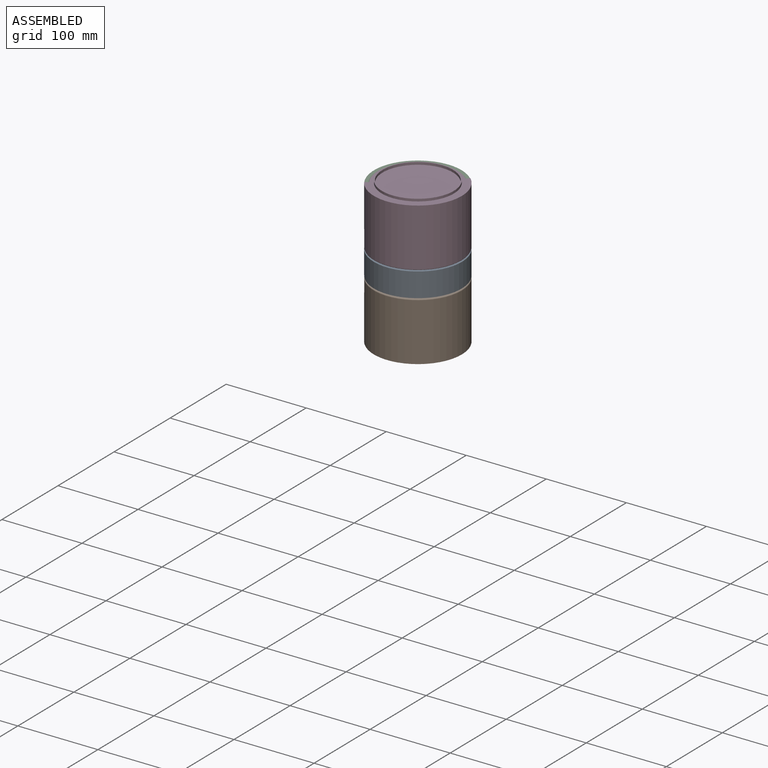
[diagram: assembled view]
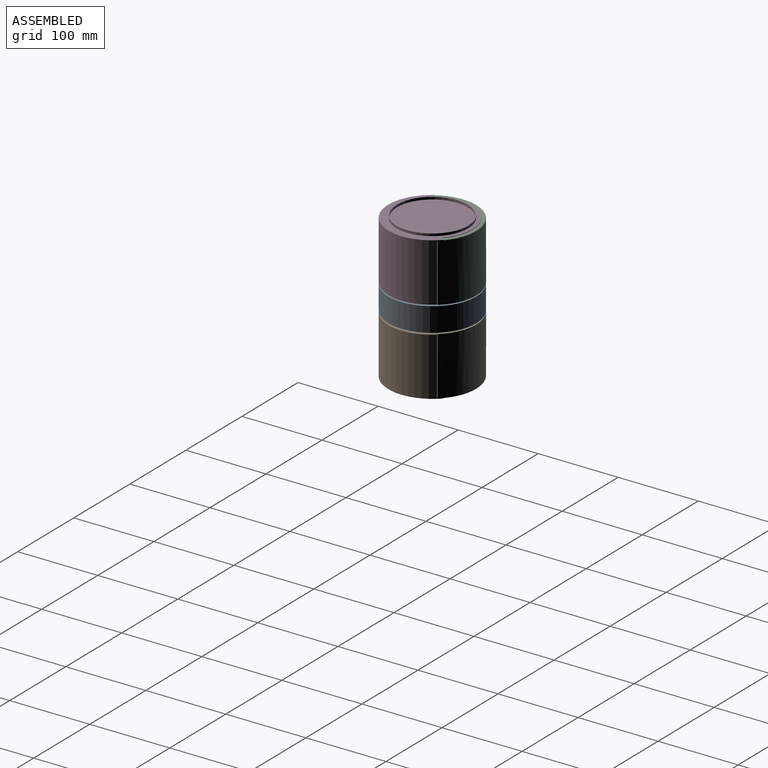
[diagram: assembled view, second angle]
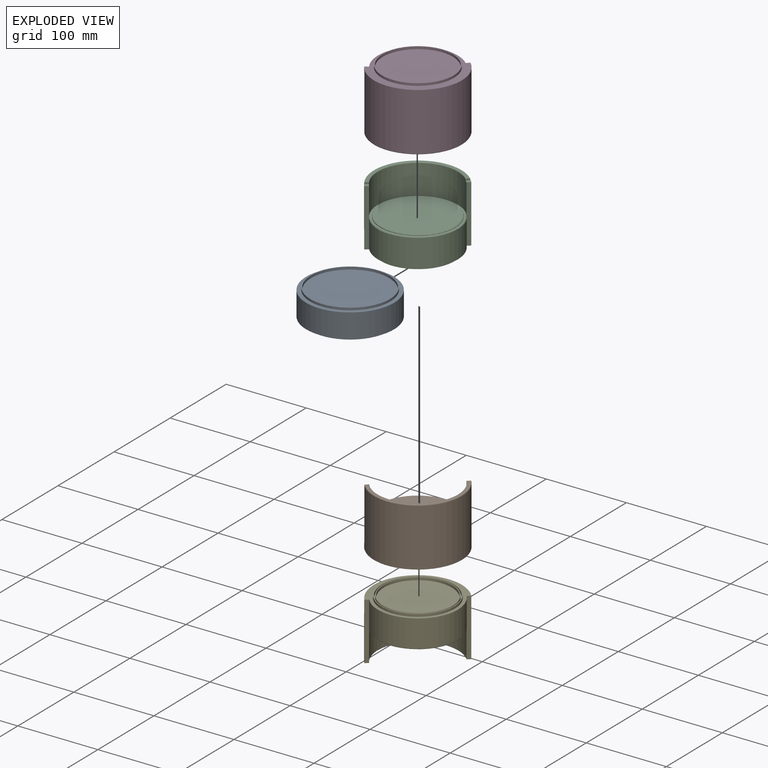
[diagram: exploded view]
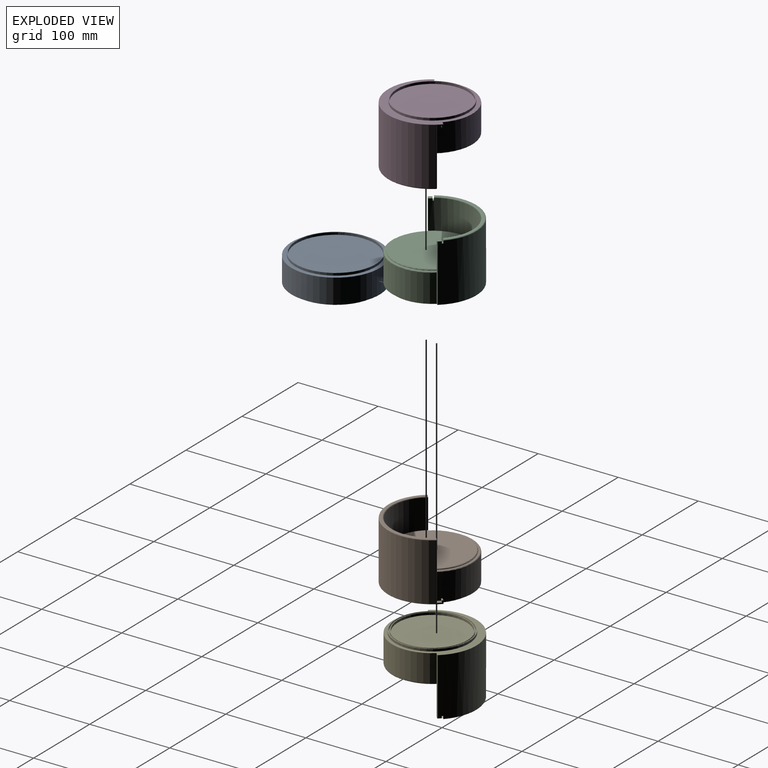
[diagram: exploded view, second angle]
ASSEMBLY  parts=5 mates=4
PART A: 11 faces, bbox 110x110x36 mm
  f0: cylinder r=55mm len=110mm, axis (0,0,-1), area 10367mm2, adj f1,f2
  f1: plane 110x110mm, normal (0,0,1), area 1649.3mm2, adj f0,f8
  f2: plane 110x110mm, normal (0,0,-1), area 1649.3mm2, adj f0,f4
  f3: cylinder r=49mm len=98mm, axis (0,0,1), area 923.6mm2, adj f5,f6
  f4: cylinder r=50mm len=100mm, axis (0,0,1), area 942.5mm2, adj f2,f5
  f5: plane 100x100mm, normal (0,0,-1), area 311mm2, adj f3,f4
  f6: plane 98x98mm, normal (0,0,-1), area 7542.6mm2, adj f3
  f7: cylinder r=49mm len=98mm, axis (0,0,-1), area 923.6mm2, adj f9,f10
  f8: cylinder r=50mm len=100mm, axis (0,0,-1), area 942.5mm2, adj f1,f9
  f9: plane 100x100mm, normal (0,0,1), area 311mm2, adj f7,f8
  f10: plane 98x98mm, normal (0,0,1), area 7542.6mm2, adj f7
PART B: 36 faces, bbox 119x113.7x76 mm
  f0: plane 100x99mm, normal (0,0,-1), area 758.7mm2, adj f5,f7,f10,f12,f23
  f1: cylinder r=44mm len=88mm, axis (0,0,-1), area 829.4mm2, adj f3,f9
  f2: cylinder r=45mm len=90mm, axis (0,0,-1), area 848.2mm2, adj f3,f4
  f3: plane 90x90mm, normal (0,0,1), area 279.6mm2, adj f1,f2
  f4: plane 110x105mm, normal (0,0,1), area 2380.4mm2, adj f2,f6,f8,f17,f18,f24,f25,f27
  f5: plane 70.5x4.99mm, normal (0,1,0), area 281.6mm2, adj f0,f8,f10,f18,f19,f23,f26
  f6: cylinder r=55mm len=109.98mm, axis (0,0,1), area 12293.9mm2, adj f4,f17,f18,f22
  f7: plane 70.5x4.99mm, normal (0,1,0), area 281.6mm2, adj f0,f8,f10,f16,f17,f23,f29
  f8: cylinder r=50mm len=100mm, axis (0,0,1), area 5314.4mm2, adj f4,f5,f7,f23,f26,f29,f30,f31
  f9: plane 88x88mm, normal (0,0,1), area 6082mm2, adj f1
  f10: cylinder r=50mm len=100mm, axis (0,0,1), area 5811.9mm2, adj f0,f5,f7,f15
  f11: plane 107.98x53mm, normal (0,0,-1), area 488.8mm2, adj f15,f16,f19,f22
  f12: cylinder r=47mm len=94mm, axis (0,0,1), area 147.7mm2, adj f0,f14
  f13: plane 92x92mm, normal (0,0,-1), area 6647.5mm2, adj f14
  f14: torus R=46mm, axis (0,0,-1), area 460.3mm2, adj f12,f13
  f15: torus R=51mm, axis (0,0,-1), area 247.4mm2, adj f10,f11,f16,f19
  f16: cylinder r=1mm len=3.99mm, axis (-1,0,0), area 5.7mm2, adj f7,f11,f15,f20
  f17: cylinder r=1mm len=72mm, axis (0,0,1), area 114.4mm2, adj f4,f6,f7,f20,f28
  f18: cylinder r=1mm len=72mm, axis (0,0,1), area 114.4mm2, adj f4,f5,f6,f21,f24
  f19: cylinder r=1mm len=3.99mm, axis (-1,0,0), area 5.7mm2, adj f5,f11,f15,f21
  f20: sphere r=1mm, area 1.6mm2, adj f16,f17,f22
  f21: sphere r=1mm, area 1.6mm2, adj f18,f19,f22
  f22: torus R=54mm, axis (0,0,-1), area 266.4mm2, adj f6,f11,f20,f21
  f23: torus R=49mm, axis (0,0,1), area 244.9mm2, adj f0,f5,f7,f8
  f24: plane 1.5x1.01mm, normal (0,-1,0), area 1.5mm2, adj f4,f18,f25,f26
  f25: cylinder r=55mm len=6.68mm, axis (0,0,1), area 14.4mm2, adj f4,f24,f26,f30,f31,f32
  f26: plane 5.2x4.94mm, normal (0,0,-1), area 23.6mm2, adj f5,f8,f24,f25,f30
  f27: cylinder r=55mm len=6.68mm, axis (0,0,1), area 14.4mm2, adj f4,f28,f29,f33,f34,f35
  f28: plane 1.5x1.01mm, normal (0,-1,0), area 1.5mm2, adj f4,f17,f27,f29
  f29: plane 5.2x4.94mm, normal (0,0,-1), area 23.6mm2, adj f7,f8,f27,f28,f33
  f30: plane 4.98x2.5mm, normal (0.09,-1,0), area 12.5mm2, adj f8,f25,f26,f32
  f31: plane 4.96x4mm, normal (-0.12,0.99,0), area 20mm2, adj f4,f8,f25,f32
  f32: plane 5.15x2.19mm, normal (0,0,-1), area 8.4mm2, adj f8,f25,f30,f31
  f33: plane 4.98x2.5mm, normal (-0.09,-1,0), area 12.5mm2, adj f8,f27,f29,f35
  f34: plane 4.96x4mm, normal (0.12,0.99,0), area 20mm2, adj f4,f8,f27,f35
  f35: plane 5.15x2.19mm, normal (0,0,-1), area 8.4mm2, adj f8,f27,f33,f34
PART C: 36 faces, bbox 118.2x113.7x76 mm
  f0: plane 4.18x0.21mm, normal (0,0,1), area 0.2mm2, adj f7,f27,f33
  f1: plane 5.15x2.17mm, normal (0,0,1), area 8.3mm2, adj f7,f10,f22,f24
  f2: plane 4.18x0.21mm, normal (0,0,1), area 0.2mm2, adj f7,f25,f34
  f3: plane 5.15x2.17mm, normal (0,0,1), area 8.3mm2, adj f7,f10,f21,f28
  f4: plane 100.01x99.01mm, normal (0,0,1), area 758.7mm2, adj f6,f8,f10,f11,f35
  f5: cylinder r=50mm len=100.01mm, axis (0,0,-1), area 5341mm2, adj f6,f8,f9,f35
  f6: plane 71.5x4.99mm, normal (0,-1,0), area 285.6mm2, adj f4,f5,f9,f10,f29,f33,f35
  f7: cylinder r=55mm len=109.99mm, axis (0,0,-1), area 12260.5mm2, adj f0,f1,f2,f3,f9,f21,f22,f30
  f8: plane 71.5x4.99mm, normal (0,-1,0), area 285.6mm2, adj f4,f5,f9,f10,f26,f34,f35
  f9: plane 109.99x105.01mm, normal (0,0,-1), area 2030.7mm2, adj f5,f6,f7,f8,f14,f33,f34
  f10: cylinder r=50mm len=100.01mm, axis (0,0,-1), area 5798.3mm2, adj f1,f3,f4,f6,f8,f21,f22,f24
  f11: cylinder r=47mm len=94.01mm, axis (0,0,-1), area 147.7mm2, adj f4,f32
  f12: plane 92.01x92.01mm, normal (0,0,1), area 6648.3mm2, adj f32
  f13: cylinder r=45mm len=90.01mm, axis (0,0,1), area 848.3mm2, adj f15,f16
  f14: cylinder r=46mm len=92.01mm, axis (0,0,1), area 867.1mm2, adj f9,f15
  f15: plane 92.01x92.01mm, normal (0,0,-1), area 285.9mm2, adj f13,f14
  f16: plane 90.01x90.01mm, normal (0,0,-1), area 334.8mm2, adj f13,f18
  f17: cylinder r=42.8mm len=85.61mm, axis (0,0,1), area 806.8mm2, adj f19,f20
  f18: cylinder r=43.8mm len=87.61mm, axis (0,0,1), area 825.7mm2, adj f16,f19
  f19: plane 87.61x87.61mm, normal (0,0,-1), area 272.1mm2, adj f17,f18
  f20: plane 85.61x85.61mm, normal (0,0,-1), area 5755.6mm2, adj f17
  f21: plane 4.96x4mm, normal (0.12,-0.99,0), area 19.6mm2, adj f3,f7,f10,f23,f30,f31
  f22: plane 4.96x4mm, normal (-0.12,-0.99,0), area 19.6mm2, adj f1,f7,f10,f23,f30,f31
  f23: plane 107.21x47.81mm, normal (0,0,1), area 456.5mm2, adj f21,f22,f30,f31
  f24: plane 4.98x2.5mm, normal (0.09,1,0), area 12.5mm2, adj f1,f10,f25,f26
  f25: plane 4.18x2.5mm, normal (-1,0.05,0), area 10.4mm2, adj f2,f24,f26,f34
  f26: plane 5.17x4.95mm, normal (0,0,1), area 23.3mm2, adj f8,f10,f24,f25,f34
  f27: plane 4.18x2.5mm, normal (1,0.05,0), area 10.4mm2, adj f0,f28,f29,f33
  f28: plane 4.98x2.5mm, normal (-0.09,1,0), area 12.5mm2, adj f3,f10,f27,f29
  f29: plane 5.17x4.95mm, normal (0,0,1), area 23.3mm2, adj f6,f10,f27,f28,f33
  f30: torus R=54mm, axis (0,0,1), area 248.7mm2, adj f7,f21,f22,f23
  f31: torus R=51mm, axis (0,0,1), area 229.3mm2, adj f10,f21,f22,f23
  f32: torus R=46mm, axis (0,0,1), area 460.3mm2, adj f11,f12
  f33: cylinder r=1mm len=71.5mm, axis (0,0,-1), area 113mm2, adj f0,f6,f7,f9,f27,f29
  f34: cylinder r=1mm len=71.5mm, axis (0,0,-1), area 113mm2, adj f2,f7,f8,f9,f25,f26
  f35: torus R=49mm, axis (0,0,1), area 245mm2, adj f4,f5,f6,f8
PART D: same geometry as B
PART E: same geometry as C
PLACE A rot(axis=(0,0,1),40deg) t=(51.69,-45.79,33.38)mm
PLACE B rot(axis=(0.34,-0.94,0),180deg) t=(51.69,-45.79,-41.12)mm
PLACE C rot(axis=(0,0,1),40deg) t=(51.69,-45.79,64.88)mm
PLACE D rot(axis=(0,0,1),40deg) t=(51.69,-45.79,137.88)mm fixed
PLACE E rot(axis=(0.34,-0.94,0),180deg) t=(51.69,-45.79,31.88)mm
MATE slider E.f7 <-> A.f0  axis (0,0,1) through (51.69,-45.79,31.88)mm
MATE slider A.f0 <-> C.f7  axis (0,0,1) through (51.69,-45.79,66.38)mm
MATE slider D.f1 <-> C.f5  axis (0,0,-1) through (51.69,-45.79,101.38)mm
MATE slider B.f1 <-> E.f5  axis (0,0,1) through (51.69,-45.79,-4.62)mm
